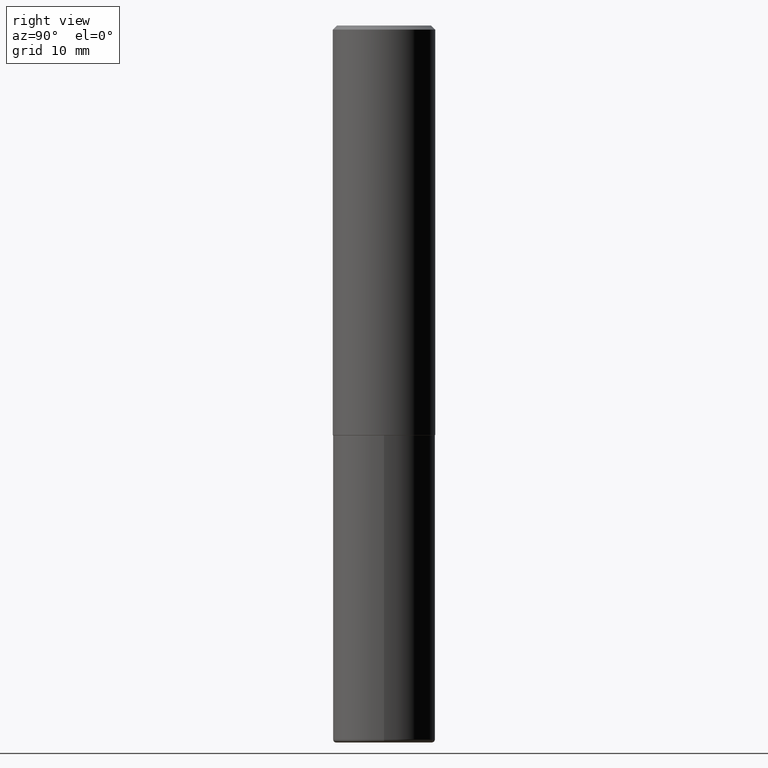
[diagram: clean part render]
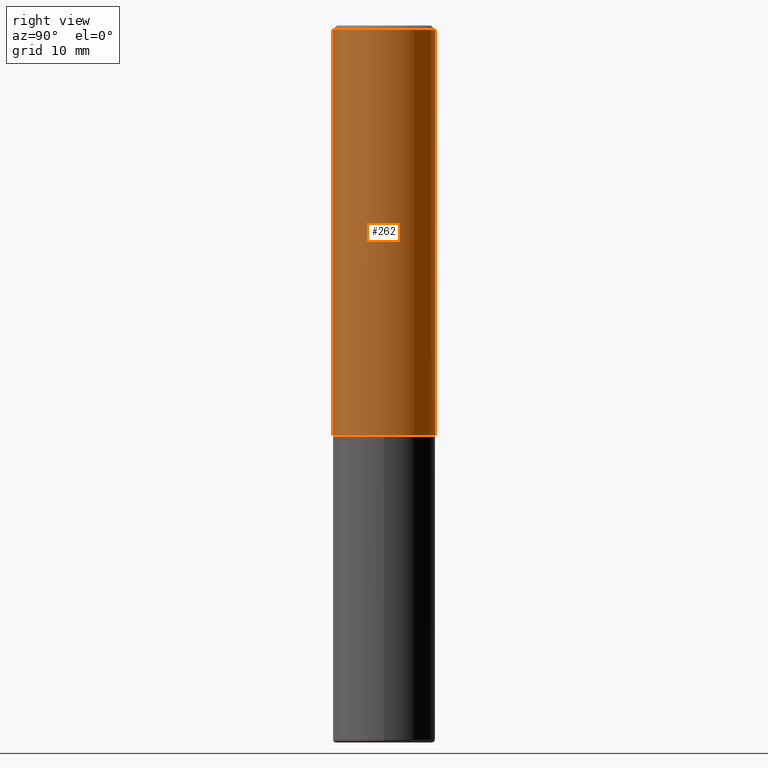
[diagram: same view with one face highlighted and labeled with its STEP entity id]
A machine part, right view. The second image highlights one B-rep face of the part: STEP entity #262.
In plain terms, the highlighted cylindrical surface (partial cylindrical patch) has radius 6.35 mm, axis along (-0, 0, 1).
Its self-contained STEP definition (entity closure, byte-faithful):
#1 = VECTOR ( 'NONE', #283, 39.37007874015748143 ) ;
#3 = LINE ( 'NONE', #359, #1 ) ;
#10 = DIRECTION ( 'NONE',  ( -6.982962677686265922E-15, -1.000000000000000000, 3.483106191921935554E-15 ) ) ;
#14 = CARTESIAN_POINT ( 'NONE',  ( 1.776356839400276103E-15, 0.2499999999999933109, -1.999000000000000554 ) ) ;
#20 = EDGE_CURVE ( 'NONE', #56, #307, #313, .T. ) ;
#23 = ORIENTED_EDGE ( 'NONE', *, *, #122, .F. ) ;
#35 = CARTESIAN_POINT ( 'NONE',  ( 4.891474366573836672E-31, -6.982194015116674235E-17, -0.02000000000000005593 ) ) ;
#56 = VERTEX_POINT ( 'NONE', #408 ) ;
#76 = ORIENTED_EDGE ( 'NONE', *, *, #167, .T. ) ;
#80 = LINE ( 'NONE', #375, #207 ) ;
#117 = CARTESIAN_POINT ( 'NONE',  ( 0.000000000000000000, 0.000000000000000000, 0.000000000000000000 ) ) ;
#120 = FACE_OUTER_BOUND ( 'NONE', #180, .T. ) ;
#122 = EDGE_CURVE ( 'NONE', #310, #387, #308, .T. ) ;
#153 = CYLINDRICAL_SURFACE ( 'NONE', #259, 0.2500000000000001110 ) ;
#167 = EDGE_CURVE ( 'NONE', #307, #387, #80, .T. ) ;
#176 = CARTESIAN_POINT ( 'NONE',  ( -1.715124499442882299E-15, -0.2500000000000000555, -0.01999999999999918510 ) ) ;
#180 = EDGE_LOOP ( 'NONE', ( #405, #76, #23, #215 ) ) ;
#207 = VECTOR ( 'NONE', #346, 39.37007874015748143 ) ;
#209 = DIRECTION ( 'NONE',  ( -2.445737183286911680E-29, 3.491097007558327602E-15, 1.000000000000000000 ) ) ;
#213 = AXIS2_PLACEMENT_3D ( 'NONE', #35, #225, #10 ) ;
#215 = ORIENTED_EDGE ( 'NONE', *, *, #399, .F. ) ;
#221 = AXIS2_PLACEMENT_3D ( 'NONE', #352, #209, #414 ) ;
#225 = DIRECTION ( 'NONE',  ( -2.445737183286911680E-29, 3.491097007558327602E-15, 1.000000000000000000 ) ) ;
#236 = DIRECTION ( 'NONE',  ( -2.445737183286911680E-29, 3.491097007558327602E-15, 1.000000000000000000 ) ) ;
#259 = AXIS2_PLACEMENT_3D ( 'NONE', #117, #236, #380 ) ;
#262 = ADVANCED_FACE ( 'NONE', ( #120 ), #153, .T. ) ;
#283 = DIRECTION ( 'NONE',  ( -2.445737183286911680E-29, 3.491097007558327602E-15, 1.000000000000000000 ) ) ;
#307 = VERTEX_POINT ( 'NONE', #14 ) ;
#308 = CIRCLE ( 'NONE', #213, 0.2500000000000000000 ) ;
#310 = VERTEX_POINT ( 'NONE', #176 ) ;
#313 = CIRCLE ( 'NONE', #221, 0.2500000000000002776 ) ;
#346 = DIRECTION ( 'NONE',  ( -2.445737183286911680E-29, 3.491097007558327602E-15, 1.000000000000000000 ) ) ;
#352 = CARTESIAN_POINT ( 'NONE',  ( 4.889028629390535480E-29, -6.978702918109095527E-15, -1.998999999999999666 ) ) ;
#359 = CARTESIAN_POINT ( 'NONE',  ( -1.745740669421567467E-15, -0.2500000000000001110, 8.727742518895823935E-16 ) ) ;
#375 = CARTESIAN_POINT ( 'NONE',  ( 1.776356839400251254E-15, 0.2500000000000001110, -8.727742518895823935E-16 ) ) ;
#380 = DIRECTION ( 'NONE',  ( -6.982962677686266711E-15, -1.000000000000000000, 3.491097007558327996E-15 ) ) ;
#387 = VERTEX_POINT ( 'NONE', #390 ) ;
#390 = CARTESIAN_POINT ( 'NONE',  ( 1.745740669421566875E-15, 0.2499999999999999167, -0.02000000000000092676 ) ) ;
#399 = EDGE_CURVE ( 'NONE', #56, #310, #3, .T. ) ;
#405 = ORIENTED_EDGE ( 'NONE', *, *, #20, .T. ) ;
#408 = CARTESIAN_POINT ( 'NONE',  ( -1.745740669421519543E-15, -0.2500000000000072164, -1.998999999999998778 ) ) ;
#414 = DIRECTION ( 'NONE',  ( -6.982962677686265922E-15, -1.000000000000000000, 3.278217592397112312E-15 ) ) ;